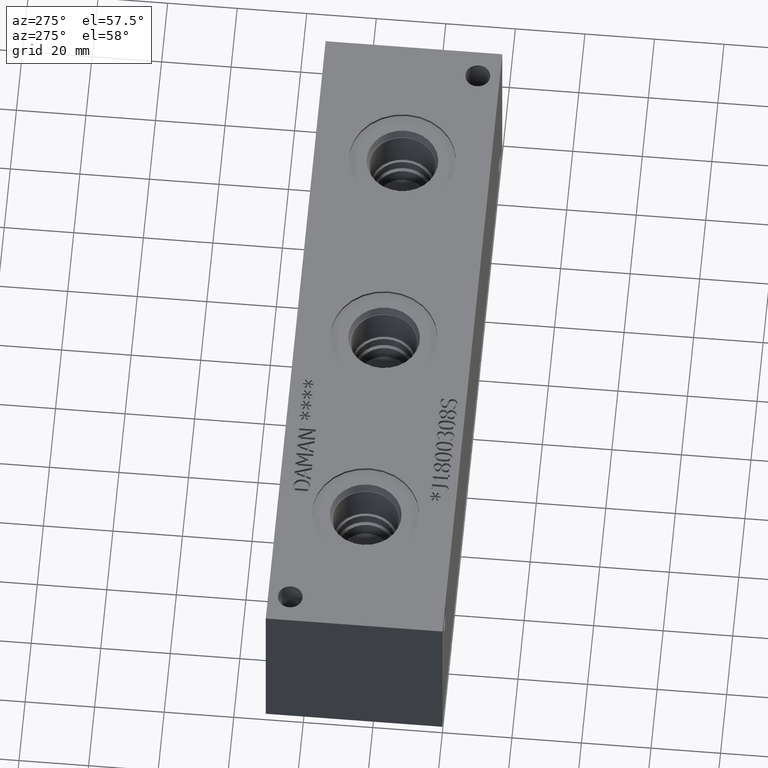
[diagram: clean part render]
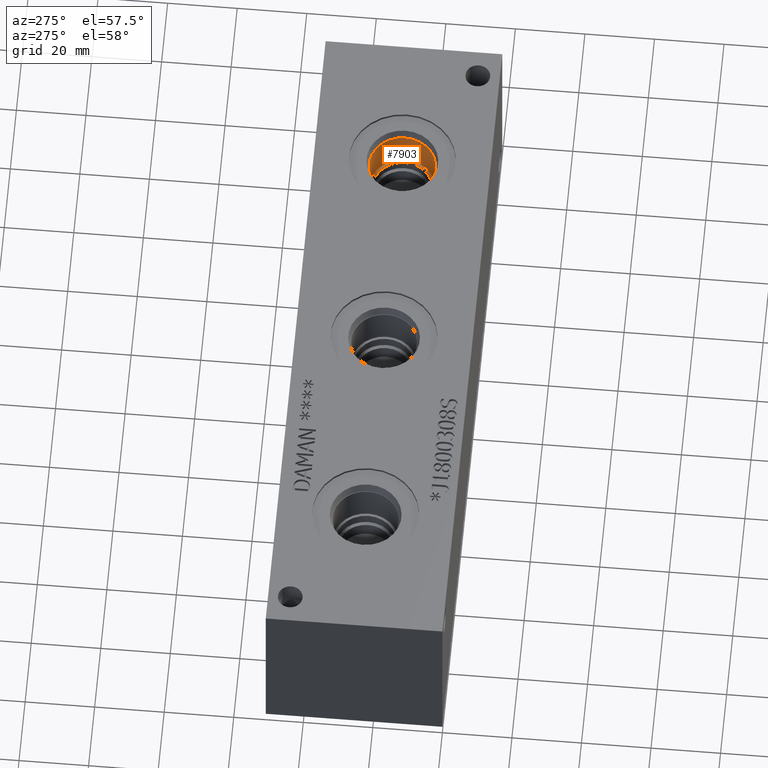
[diagram: same view with one face highlighted and labeled with its STEP entity id]
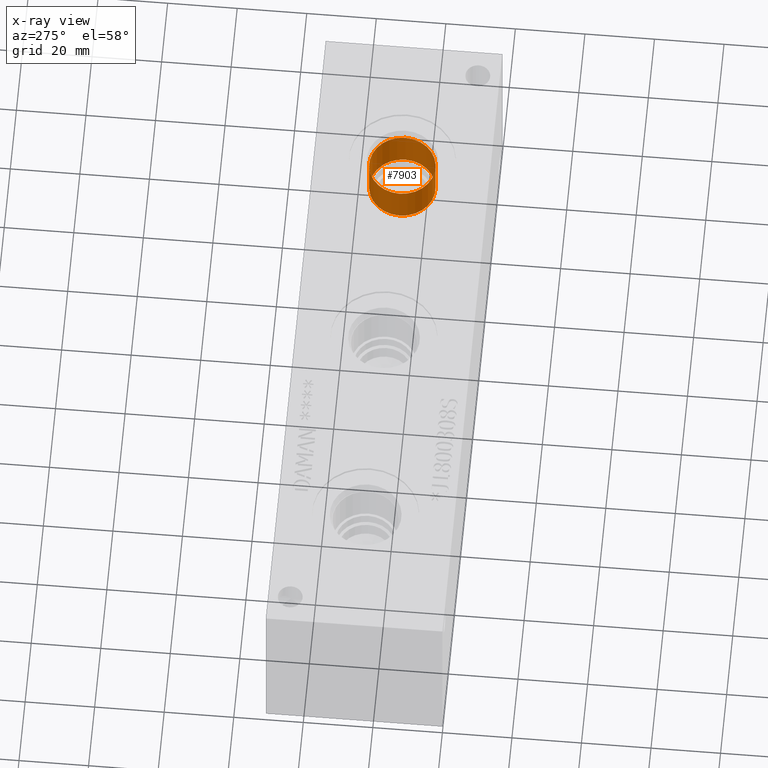
[diagram: x-ray of the same camera — body ghosted, the highlighted face saturated]
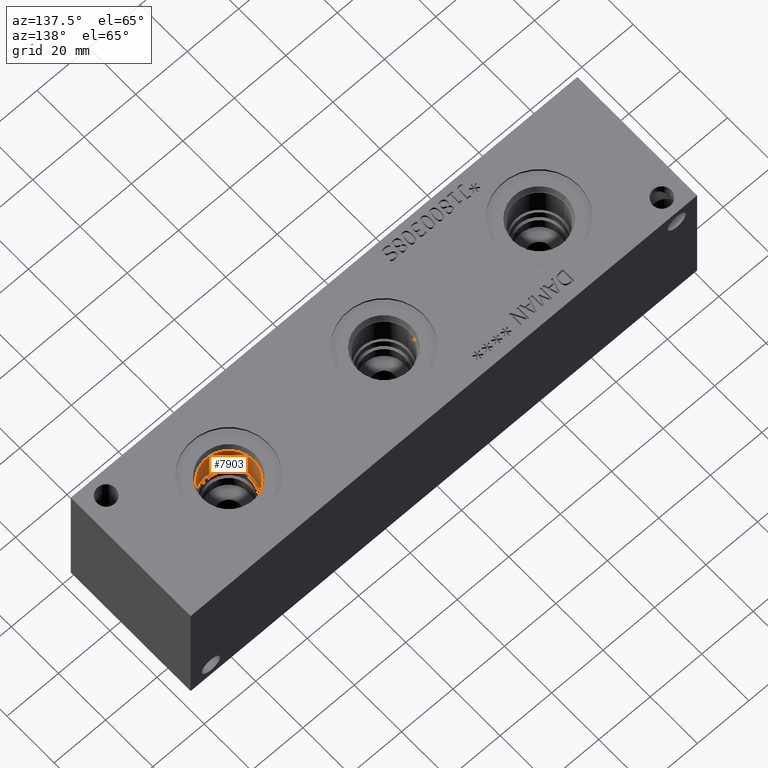
[diagram: same view with one face highlighted and labeled with its STEP entity id]
A machine part, auxiliary view. The second image highlights one B-rep face of the part: STEP entity #7903.
The next image is the same camera in x-ray: the body ghosted, the highlighted face saturated — about 0% of this face is hidden behind the body in this view.
A second angle (auxiliary view) of the same face is appended — the face is thin or edge-on in the first view.
In plain terms, the highlighted cylindrical surface (bore or boss wall) has radius 9.525 mm, axis along (0, 0, 1).
Its self-contained STEP definition (entity closure, byte-faithful):
#75=CYLINDRICAL_SURFACE('',#8312,9.525);
#170=CIRCLE('',#8284,9.525);
#185=CIRCLE('',#8309,9.525);
#186=CIRCLE('',#8310,9.525);
#871=FACE_OUTER_BOUND('',#1320,.T.);
#1320=EDGE_LOOP('',(#6952,#6953,#6954,#6955,#6956));
#2052=LINE('',#13665,#2771);
#2771=VECTOR('',#9803,9.525);
#3728=VERTEX_POINT('',#13609);
#3743=VERTEX_POINT('',#13658);
#3744=VERTEX_POINT('',#13659);
#4803=EDGE_CURVE('',#3728,#3728,#170,.T.);
#4826=EDGE_CURVE('',#3743,#3744,#185,.T.);
#4827=EDGE_CURVE('',#3744,#3743,#186,.T.);
#4829=EDGE_CURVE('',#3728,#3744,#2052,.T.);
#6952=ORIENTED_EDGE('',*,*,#4803,.T.);
#6953=ORIENTED_EDGE('',*,*,#4829,.T.);
#6954=ORIENTED_EDGE('',*,*,#4826,.F.);
#6955=ORIENTED_EDGE('',*,*,#4827,.F.);
#6956=ORIENTED_EDGE('',*,*,#4829,.F.);
#7903=ADVANCED_FACE('',(#871),#75,.F.);
#8284=AXIS2_PLACEMENT_3D('',#13611,#9737,#9738);
#8309=AXIS2_PLACEMENT_3D('',#13660,#9795,#9796);
#8310=AXIS2_PLACEMENT_3D('',#13661,#9797,#9798);
#8312=AXIS2_PLACEMENT_3D('',#13664,#9801,#9802);
#9737=DIRECTION('center_axis',(0.,0.,1.));
#9738=DIRECTION('ref_axis',(1.,0.,0.));
#9795=DIRECTION('center_axis',(0.,0.,1.));
#9796=DIRECTION('ref_axis',(1.,0.,0.));
#9797=DIRECTION('center_axis',(0.,0.,1.));
#9798=DIRECTION('ref_axis',(1.,0.,0.));
#9801=DIRECTION('center_axis',(0.,0.,1.));
#9802=DIRECTION('ref_axis',(1.,0.,0.));
#9803=DIRECTION('',(0.,0.,-1.));
#13609=CARTESIAN_POINT('',(149.225,25.4,47.3964));
#13611=CARTESIAN_POINT('Origin',(158.75,25.4,47.3964));
#13658=CARTESIAN_POINT('',(168.275,25.4,35.7378));
#13659=CARTESIAN_POINT('',(149.225,25.4,35.7378));
#13660=CARTESIAN_POINT('Origin',(158.75,25.4,35.7378));
#13661=CARTESIAN_POINT('Origin',(158.75,25.4,35.7378));
#13664=CARTESIAN_POINT('Origin',(158.75,25.4,43.2689));
#13665=CARTESIAN_POINT('',(149.225,25.4,43.2689));